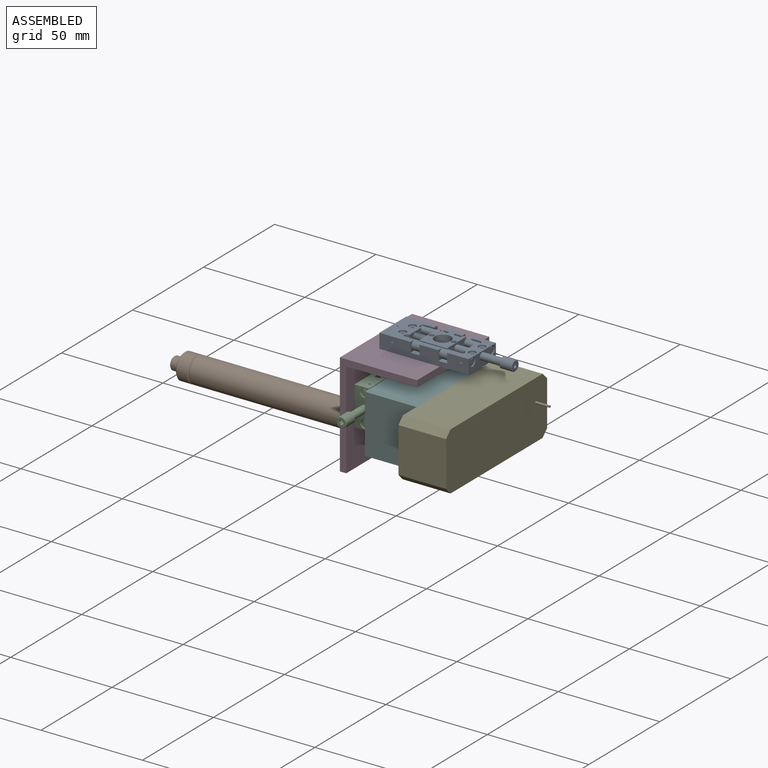
[diagram: assembled view]
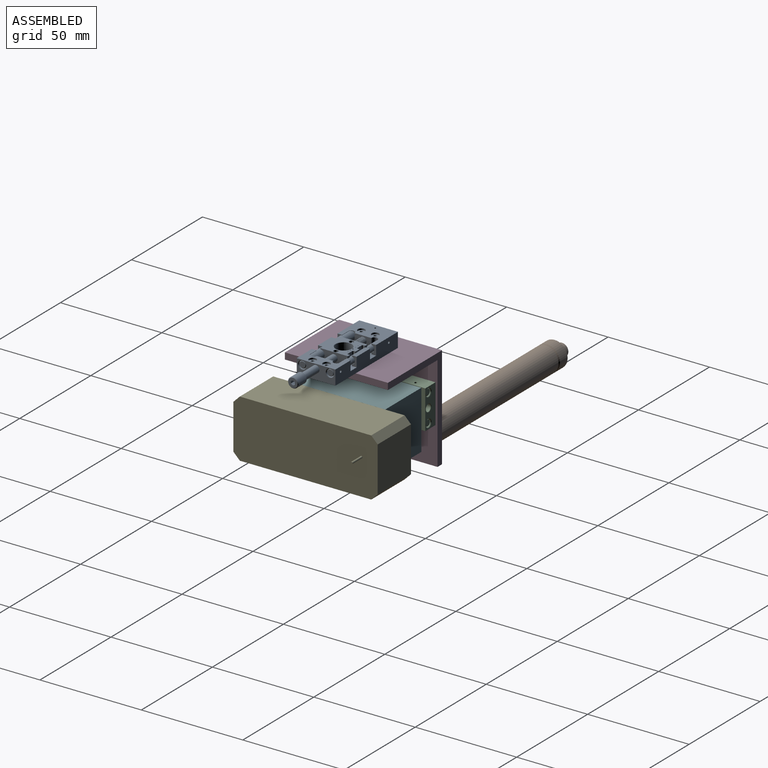
[diagram: assembled view, second angle]
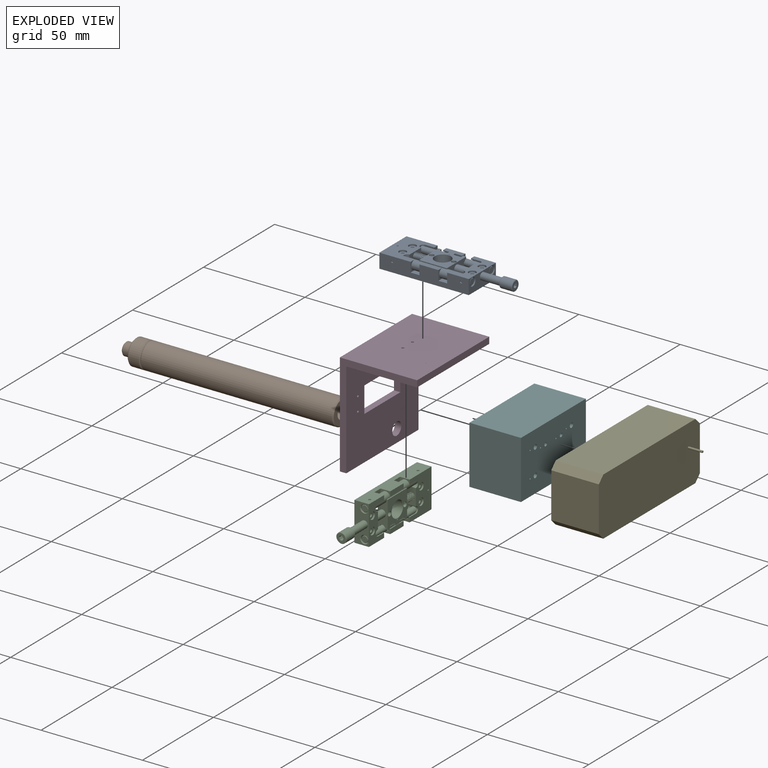
[diagram: exploded view]
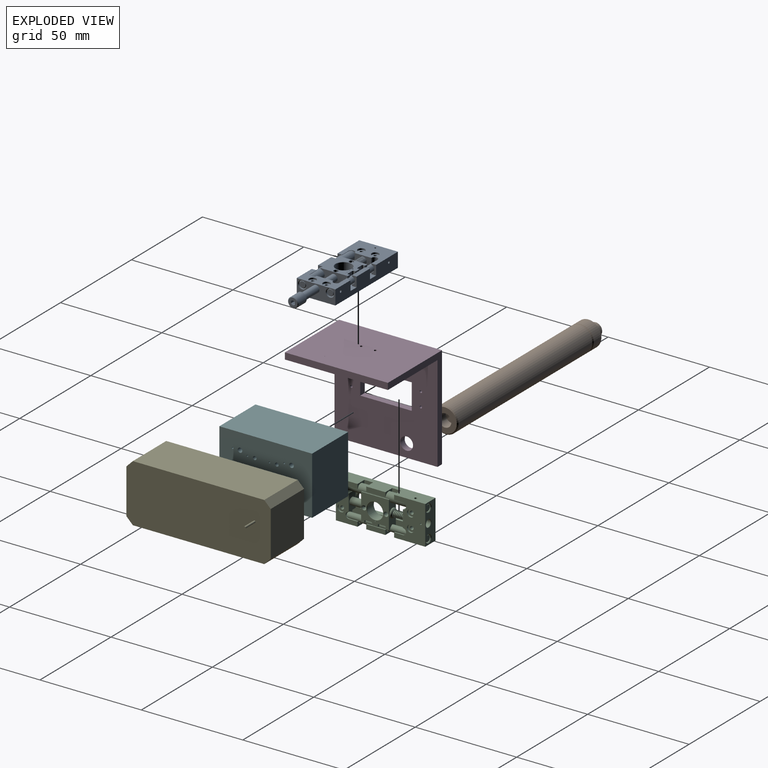
[diagram: exploded view, second angle]
ASSEMBLY  parts=6 mates=5
PART A: 200 faces, bbox 60.4x19.1x7.6 mm
  f0: plane 2.92x2.92mm, normal (1,0,0), area 6.7mm2, adj f1
  f1: cone r=1.59mm half-angle=45deg, axis (-1,0,0), area 4.6mm2, adj f0,f7
  f2: plane 2.92x2.92mm, normal (1,0,0), area 6.7mm2, adj f8
  f3: plane 2.92x2.92mm, normal (-1,0,0), area 6.7mm2, adj f9
  f4: torus R=1.5mm, axis (1,0,0), area 9mm2, adj f17
  f5: plane 2.49x2.49mm, normal (1,0,0), area 4.9mm2, adj f18
  f6: plane 2.92x2.92mm, normal (-1,0,0), area 6.7mm2, adj f22
  f7: cylinder r=1.78mm len=3.56mm, axis (-1,0,0), area 5mm2, adj f1,f26
  f8: cone r=1.59mm half-angle=45deg, axis (-1,0,0), area 1.7mm2, adj f2,f50
  f9: cone r=1.59mm half-angle=45deg, axis (1,0,0), area 1.7mm2, adj f3,f50
  f10: cylinder r=0.48mm len=1.76mm, axis (0,0,1), area 1.1mm2, adj f11,f20,f21,f52
  f11: plane 2.99x1.82mm, normal (0,-1,0), area 5.2mm2, adj f10,f12,f20,f52
  f12: cylinder r=0.48mm len=1.8mm, axis (0,0,1), area 1.2mm2, adj f11,f13,f20,f52
  f13: plane 1.32x0.79mm, normal (1,0,0), area 0.8mm2, adj f12,f14,f20,f44,f52
  f14: cylinder r=0.13mm len=1mm, axis (0,0,-1), area 0.2mm2, adj f13,f15,f44,f52
  f15: plane 2.54x1mm, normal (0,-1,0), area 2.5mm2, adj f14,f16,f44,f52
  f16: cylinder r=0.13mm len=1mm, axis (0,0,-1), area 0.2mm2, adj f15,f43,f44,f52
  f17: bspline ~14.23x3.35mm, area 188.1mm2, adj f4,f59
  f18: cylinder r=1.24mm len=7.47mm, axis (1,0,0), area 58.4mm2, adj f5,f59
  f19: extruded ~5.18x1.17mm, area 6.1mm2, adj f20,f48,f58,f62
  f20: extruded ~5.2x1.14mm, area 3.6mm2, adj f10,f11,f12,f13,f19,f44,f45,f46
  f21: plane 1.27x0.79mm, normal (-1,0,0), area 0.8mm2, adj f10,f40,f52,f63,f64
  f22: cone r=1.59mm half-angle=45deg, axis (1,0,0), area 4.6mm2, adj f6,f65
  f23: plane 3.57x3.57mm, normal (0,0,1), area 7.5mm2, adj f30,f70
  f24: plane 3.57x3.57mm, normal (0,0,1), area 7.5mm2, adj f29,f74
  f25: cone r=2.03mm half-angle=45deg, axis (1,0,0), area 4.3mm2, adj f33,f77
  f26: cone r=2.03mm half-angle=45deg, axis (1,0,0), area 4.3mm2, adj f7,f77
  f27: cone r=1.91mm half-angle=45deg, axis (1,0,0), area 2mm2, adj f37,f77
  f28: cylinder r=0.4mm len=0.8mm, axis (0,0,1), area 1.4mm2, adj f37,f78
  f29: cylinder r=1.79mm len=3.57mm, axis (0,0,1), area 9.1mm2, adj f24,f78
  f30: cylinder r=1.79mm len=3.57mm, axis (0,0,1), area 9.1mm2, adj f23,f78
  f31: cylinder r=2.19mm len=1.18mm, axis (1,0,0), area 1.1mm2, adj f79
  f32: cylinder r=2.19mm len=1.18mm, axis (1,0,0), area 1.1mm2, adj f80
  f33: cylinder r=1.78mm len=15.11mm, axis (-1,0,0), area 131.5mm2, adj f25,f34,f68,f83,f84,f85
  f34: plane 4.32x0.55mm, normal (0,1,0), area 2.4mm2, adj f33,f78,f83,f85
  f35: cylinder r=1.78mm len=9.4mm, axis (-1,0,0), area 45.3mm2, adj f36,f86,f87,f88
  f36: plane 9.4x0.55mm, normal (0,1,0), area 5.2mm2, adj f35,f66,f86,f88
  f37: cylinder r=1.78mm len=10.93mm, axis (1,0,0), area 121.5mm2, adj f27,f28,f72,f92
  f38: plane 3.57x3.57mm, normal (0,0,1), area 7.5mm2, adj f73,f98
  f39: plane 3.57x3.57mm, normal (0,0,1), area 7.5mm2, adj f71,f99
  f40: cylinder r=0.13mm len=1mm, axis (0,0,-1), area 0.2mm2, adj f21,f52,f64,f103
  f41: plane 2.98x1.82mm, normal (0,-1,0), area 5.2mm2, adj f42,f47,f52,f112
  f42: cylinder r=0.48mm len=1.8mm, axis (0,0,1), area 1.2mm2, adj f41,f43,f52,f112
  f43: plane 1.32x0.79mm, normal (-1,0,0), area 0.8mm2, adj f16,f42,f44,f52,f112
  f44: plane 2.8x0.6mm, normal (0,0,-1), area 1.6mm2, adj f13,f14,f15,f16,f20,f43,f45,f112
  f45: plane 0.4x0.4mm, normal (0,-0.71,-0.71), area 0.2mm2, adj f20,f44,f50,f112
  f46: plane 0.41x0.41mm, normal (0,-0.71,-0.71), area 0.2mm2, adj f20,f48,f50,f112
  f47: cylinder r=0.48mm len=1.76mm, axis (0,0,1), area 1.1mm2, adj f41,f52,f112,f113
  f48: plane 1.17x0.28mm, normal (0,-1,0), area 0.3mm2, adj f19,f46,f49,f114
  f49: plane 0.41x0.41mm, normal (0,-0.71,0.71), area 0.2mm2, adj f48,f50,f58,f115
  f50: cylinder r=1.59mm len=43.18mm, axis (1,0,0), area 430.2mm2, adj f8,f9,f20,f45,f46,f49,f51,f58
  f51: plane 0.4x0.4mm, normal (0,-0.71,0.71), area 0.2mm2, adj f50,f57,f58,f115
  f52: plane 11.66x2.41mm, normal (0,0,1), area 16.5mm2, adj f10,f11,f12,f13,f14,f15,f16,f21
  f53: plane 2.38x2.38mm, normal (0,0,-1), area 4.5mm2, adj f117
  f54: torus R=1.5mm, axis (1,0,0), area 1.4mm2, adj f118
  f55: torus R=1.5mm, axis (1,0,0), area 1.6mm2, adj f118
  f56: cylinder r=3.97mm len=7.94mm, axis (0,0,-1), area 116.9mm2, adj f108,f119
  f57: plane 2.8x0.6mm, normal (0,0,1), area 1.6mm2, adj f51,f58,f115,f123,f124,f125,f126,f127
  f58: extruded ~5.2x1.14mm, area 3.6mm2, adj f19,f49,f50,f51,f57,f61,f127,f128
  f59: torus R=1.5mm, axis (1,0,0), area 18.8mm2, adj f17,f18,f165
  f60: plane 1.52x0.65mm, normal (0,0,1), area 1mm2, adj f61,f131,f132,f133,f134,f165
  f61: plane 1.52x1.05mm, normal (0,-0.71,0.71), area 2.3mm2, adj f58,f60,f62,f131,f165
  f62: plane 1.52x1.17mm, normal (0,-1,0), area 1.8mm2, adj f19,f61,f63,f165
  f63: plane 1.52x1.05mm, normal (0,-0.71,-0.71), area 2.3mm2, adj f20,f21,f62,f64,f165
  f64: plane 1.52x0.65mm, normal (0,0,-1), area 1mm2, adj f21,f40,f63,f102,f103,f165
  f65: cylinder r=1.78mm len=3.56mm, axis (-1,0,0), area 3.5mm2, adj f22,f140
  f66: plane 9.4x2.29mm, normal (0,0,1), area 21.5mm2, adj f36,f86,f88,f142
  f67: cylinder r=0.59mm len=1.18mm, axis (0,-1,0), area 3.3mm2, adj f95,f142
  f68: cylinder r=0.59mm len=1.18mm, axis (0,-1,0), area 3.3mm2, adj f33,f142
  f69: cylinder r=0.76mm len=2.3mm, axis (0,0,1), area 11mm2, adj f82,f143
  f70: cylinder r=0.89mm len=6.35mm, axis (0,0,1), area 35.5mm2, adj f23,f143
  f71: cylinder r=0.89mm len=6.35mm, axis (0,0,1), area 35.5mm2, adj f39,f143
  f72: cylinder r=0.4mm len=3.14mm, axis (0,0,1), area 7.8mm2, adj f37,f143
  f73: cylinder r=0.89mm len=6.35mm, axis (0,0,1), area 35.5mm2, adj f38,f143
  f74: cylinder r=0.89mm len=6.35mm, axis (0,0,1), area 35.5mm2, adj f24,f143
  f75: cylinder r=0.76mm len=2.3mm, axis (0,0,1), area 11mm2, adj f93,f143
  f76: plane 9.4x2.29mm, normal (0,0,1), area 21.5mm2, adj f144,f154,f155,f156
  f77: plane 19.05x7.16mm, normal (1,0,0), area 99.1mm2, adj f25,f26,f27,f78,f142,f143,f144
  f78: plane 19.05x15.37mm, normal (0,0,1), area 201.9mm2, adj f28,f29,f30,f34,f77,f83,f85,f92
  f79: cylinder r=0.59mm len=1.18mm, axis (0,1,0), area 1.9mm2, adj f31,f144
  f80: cylinder r=0.59mm len=1.18mm, axis (0,1,0), area 1.9mm2, adj f32,f144
  f81: plane 18.8x2.39mm, normal (0,-1,0), area 44.9mm2, adj f89,f91,f143,f146
  f82: cone r=0.85mm half-angle=45deg, axis (0,0,1), area 0.6mm2, adj f69,f146
  f83: cylinder r=1.57mm len=4.78mm, axis (0,0,1), area 14.1mm2, adj f33,f34,f78,f84,f92,f147
  f84: plane 4.32x0.75mm, normal (0,1,0), area 3.2mm2, adj f33,f83,f85,f147
  f85: plane 4.78x2.29mm, normal (-1,0,0), area 7.3mm2, adj f33,f34,f78,f84,f142,f147
  f86: plane 4.78x2.29mm, normal (1,0,0), area 7.3mm2, adj f35,f36,f66,f87,f142,f147
  f87: plane 9.4x0.75mm, normal (0,1,0), area 7.1mm2, adj f35,f86,f88,f147
  f88: plane 4.78x2.29mm, normal (-1,0,0), area 7.3mm2, adj f35,f36,f66,f87,f142,f147
  f89: cylinder r=3.94mm len=7.87mm, axis (0,0,1), area 29.5mm2, adj f81,f90,f143,f146,f147
  f90: plane 18.8x2.39mm, normal (0,1,0), area 44.9mm2, adj f89,f91,f143,f147
  f91: cylinder r=3.94mm len=7.87mm, axis (0,0,1), area 29.5mm2, adj f81,f90,f143,f146,f147
  f92: plane 8.18x4.78mm, normal (-1,0,0), area 29.1mm2, adj f37,f78,f83,f146,f147,f160
  f93: cone r=0.85mm half-angle=45deg, axis (0,0,1), area 0.6mm2, adj f75,f147
  f94: plane 4.32x0.75mm, normal (0,1,0), area 3.2mm2, adj f95,f97,f147,f148
  f95: cylinder r=1.78mm len=10.41mm, axis (-1,0,0), area 79mm2, adj f67,f94,f96,f97,f141,f148
  f96: plane 4.32x0.55mm, normal (0,1,0), area 2.4mm2, adj f95,f97,f148,f149
  f97: plane 4.78x2.29mm, normal (1,0,0), area 7.3mm2, adj f94,f95,f96,f142,f147,f149
  f98: cylinder r=1.79mm len=3.57mm, axis (0,0,1), area 9.1mm2, adj f38,f149
  f99: cylinder r=1.79mm len=3.57mm, axis (0,0,1), area 9.1mm2, adj f39,f149
  f100: cylinder r=1.27mm len=1.27mm, axis (0,0,1), area 0.1mm2, adj f52,f101,f107,f168
  f101: plane 1.14x0.03mm, normal (1,0,0), area 0mm2, adj f52,f100,f110,f168
  f102: cylinder r=0.13mm len=1.03mm, axis (0,0,1), area 0.2mm2, adj f64,f103,f165,f168
  f103: plane 1.27x1.03mm, normal (0,-1,0), area 1.3mm2, adj f40,f52,f64,f102,f104,f168
  f104: plane 1.14x0.03mm, normal (-1,0,0), area 0mm2, adj f52,f103,f105,f168
  f105: cylinder r=1.27mm len=1.27mm, axis (0,0,1), area 0.1mm2, adj f52,f104,f106,f168
  f106: plane 4.37x0.03mm, normal (0,-1,0), area 0.1mm2, adj f52,f105,f116,f168
  f107: plane 4.37x0.03mm, normal (0,-1,0), area 0.1mm2, adj f52,f100,f116,f168
  f108: cone r=3.97mm half-angle=45deg, axis (0,0,1), area 4.3mm2, adj f56,f168
  f109: cone r=1.09mm half-angle=45deg, axis (0,0,1), area 0.6mm2, adj f118,f168
  f110: plane 1.27x1.03mm, normal (0,-1,0), area 1.3mm2, adj f52,f101,f111,f168,f169,f170
  f111: cylinder r=0.13mm len=1mm, axis (0,0,-1), area 0.2mm2, adj f52,f110,f113,f170
  f112: extruded ~5.2x1.14mm, area 3.6mm2, adj f41,f42,f43,f44,f45,f46,f47,f50
  f113: plane 1.27x0.79mm, normal (1,0,0), area 0.8mm2, adj f47,f52,f111,f170,f171
  f114: extruded ~5.18x1.17mm, area 6.1mm2, adj f48,f112,f115,f172
  f115: extruded ~5.2x1.14mm, area 3.6mm2, adj f49,f50,f51,f57,f114,f120,f121,f122
  f116: cylinder r=0.25mm len=4.93mm, axis (0,0,1), area 7.8mm2, adj f52,f106,f107,f168,f176
  f117: cylinder r=1.19mm len=2.38mm, axis (0,0,-1), area 1mm2, adj f53,f176
  f118: cylinder r=1.09mm len=4.86mm, axis (0,0,-1), area 30.2mm2, adj f54,f55,f109,f176
  f119: cone r=4.09mm half-angle=45deg, axis (0,0,-1), area 4.3mm2, adj f56,f176
  f120: cylinder r=0.48mm len=1.38mm, axis (0,0,1), area 0.9mm2, adj f115,f121,f137,f176
  f121: plane 2.98x1.44mm, normal (0,-1,0), area 4.1mm2, adj f115,f120,f122,f176
  f122: cylinder r=0.48mm len=1.41mm, axis (0,0,1), area 0.9mm2, adj f115,f121,f123,f176
  f123: plane 0.94x0.79mm, normal (-1,0,0), area 0.5mm2, adj f57,f115,f122,f124,f176
  f124: cylinder r=0.13mm len=0.62mm, axis (0,0,-1), area 0.1mm2, adj f57,f123,f125,f176
  f125: plane 2.54x0.62mm, normal (0,-1,0), area 1.6mm2, adj f57,f124,f126,f176
  f126: cylinder r=0.13mm len=0.62mm, axis (0,0,-1), area 0.1mm2, adj f57,f125,f127,f176
  f127: plane 0.94x0.79mm, normal (1,0,0), area 0.5mm2, adj f57,f58,f126,f128,f176
  f128: cylinder r=0.48mm len=1.41mm, axis (0,0,1), area 0.9mm2, adj f58,f127,f129,f176
  f129: plane 2.99x1.44mm, normal (0,-1,0), area 4.1mm2, adj f58,f128,f130,f176
  f130: cylinder r=0.48mm len=1.38mm, axis (0,0,1), area 0.9mm2, adj f58,f129,f131,f176
  f131: plane 0.89x0.79mm, normal (-1,0,0), area 0.5mm2, adj f60,f61,f130,f132,f176
  f132: cylinder r=0.13mm len=0.62mm, axis (0,0,-1), area 0.1mm2, adj f60,f131,f133,f176
  f133: plane 1.27x0.62mm, normal (0,-1,0), area 0.8mm2, adj f60,f132,f134,f176
  f134: cylinder r=0.13mm len=0.62mm, axis (0,0,1), area 0.1mm2, adj f60,f133,f165,f176
  f135: plane 1.27x0.62mm, normal (0,-1,0), area 0.8mm2, adj f136,f174,f175,f176
  f136: cylinder r=0.13mm len=0.62mm, axis (0,0,-1), area 0.1mm2, adj f135,f137,f174,f176
  f137: plane 0.89x0.79mm, normal (1,0,0), area 0.5mm2, adj f120,f136,f173,f174,f176
  f138: plane 4.78x2.29mm, normal (1,0,0), area 5.2mm2, adj f139,f144,f146,f149,f152,f178
  f139: plane 4.32x0.34mm, normal (0,-1,0), area 1.5mm2, adj f138,f145,f146,f178
  f140: cone r=1.78mm half-angle=45deg, axis (-1,0,0), area 4.3mm2, adj f65,f151
  f141: cone r=1.78mm half-angle=45deg, axis (-1,0,0), area 4.3mm2, adj f95,f151
  f142: plane 44.07x7.16mm, normal (0,-1,0), area 272.2mm2, adj f66,f67,f68,f77,f78,f85,f86,f88
  f143: plane 44.07x19.05mm, normal (0,0,-1), area 628.7mm2, adj f69,f70,f71,f72,f73,f74,f75,f77
  f144: plane 44.07x7.16mm, normal (0,1,0), area 272.2mm2, adj f76,f77,f78,f79,f80,f138,f143,f146
  f145: cylinder r=1.57mm len=4.78mm, axis (0,0,1), area 10.3mm2, adj f139,f146,f149,f150,f152,f178
  f146: plane 29.82x9.53mm, normal (0,0,1), area 120mm2, adj f81,f82,f89,f91,f92,f138,f139,f144
  f147: plane 29.82x9.53mm, normal (0,0,1), area 120mm2, adj f83,f84,f85,f86,f87,f88,f89,f90
  f148: cylinder r=1.57mm len=4.78mm, axis (0,0,1), area 14.2mm2, adj f94,f95,f96,f147,f149,f150
  f149: plane 19.05x10.67mm, normal (0,0,1), area 112.9mm2, adj f96,f97,f98,f99,f138,f142,f144,f145
  f150: plane 8.18x4.78mm, normal (1,0,0), area 29.4mm2, adj f145,f146,f147,f148,f149,f181
  f151: plane 19.05x7.16mm, normal (-1,0,0), area 100.9mm2, adj f140,f141,f142,f143,f144,f149,f182
  f152: plane 4.32x0.14mm, normal (0,-1,0), area 0.6mm2, adj f138,f145,f149,f178
  f153: plane 9.4x0.34mm, normal (0,-1,0), area 3.2mm2, adj f146,f154,f156,f178
  f154: plane 4.78x2.29mm, normal (-1,0,0), area 5.2mm2, adj f76,f144,f146,f153,f155,f178
  f155: plane 9.4x0.14mm, normal (0,-1,0), area 1.3mm2, adj f76,f154,f156,f178
  f156: plane 4.78x2.29mm, normal (1,0,0), area 5.2mm2, adj f76,f144,f146,f153,f155,f178
  f157: plane 4.32x0.34mm, normal (0,-1,0), area 1.5mm2, adj f146,f158,f160,f178
  f158: plane 4.78x2.29mm, normal (-1,0,0), area 5.2mm2, adj f78,f144,f146,f157,f159,f178
  f159: plane 4.32x0.14mm, normal (0,-1,0), area 0.6mm2, adj f78,f158,f160,f178
  f160: cylinder r=1.57mm len=4.78mm, axis (0,0,1), area 10.3mm2, adj f78,f92,f146,f157,f159,f178
  f161: cylinder r=0.13mm len=0.49mm, axis (0,0,1), area 0.1mm2, adj f162,f165,f168,f178
  f162: plane 13.44x0.48mm, normal (0,1,0), area 6.4mm2, adj f161,f167,f168,f178
  f163: plane 13.44x0.07mm, normal (0,1,0), area 1mm2, adj f164,f176,f177,f178
  f164: cylinder r=0.13mm len=0.13mm, axis (0,0,1), area 0mm2, adj f163,f165,f176,f178
  f165: plane 13.36x4.93mm, normal (1,0,0), area 39mm2, adj f59,f60,f61,f62,f63,f64,f102,f134
  f166: cone r=1.09mm half-angle=45deg, axis (0,0,1), area 0.6mm2, adj f168,f180
  f167: cylinder r=0.13mm len=0.49mm, axis (0,0,1), area 0.1mm2, adj f162,f168,f178,f179
  f168: plane 13.69x13.61mm, normal (0,0,1), area 98mm2, adj f100,f101,f102,f103,f104,f105,f106,f107
  f169: cylinder r=0.13mm len=1.03mm, axis (0,0,1), area 0.2mm2, adj f110,f168,f170,f179
  f170: plane 1.52x0.65mm, normal (0,0,-1), area 1mm2, adj f110,f111,f113,f169,f171,f179
  f171: plane 1.52x1.05mm, normal (0,-0.71,-0.71), area 2.3mm2, adj f112,f113,f170,f172,f179
  f172: plane 1.52x1.17mm, normal (0,-1,0), area 1.8mm2, adj f114,f171,f173,f179
  f173: plane 1.52x1.05mm, normal (0,-0.71,0.71), area 2.3mm2, adj f115,f137,f172,f174,f179
  f174: plane 1.52x0.65mm, normal (0,0,1), area 1mm2, adj f135,f136,f137,f173,f175,f179
  f175: cylinder r=0.13mm len=0.62mm, axis (0,0,1), area 0.1mm2, adj f135,f174,f176,f179
  f176: plane 13.69x13.61mm, normal (0,0,-1), area 110.9mm2, adj f116,f117,f118,f119,f120,f121,f122,f123
  f177: cylinder r=0.13mm len=0.13mm, axis (0,0,1), area 0mm2, adj f163,f176,f178,f179
  f178: cylinder r=2.19mm len=29.82mm, axis (1,0,0), area 184.8mm2, adj f138,f139,f145,f152,f153,f154,f155,f156
  f179: plane 13.36x4.93mm, normal (-1,0,0), area 45.4mm2, adj f167,f168,f169,f170,f171,f172,f173,f174
  f180: cylinder r=1.09mm len=4.86mm, axis (0,0,-1), area 30mm2, adj f166,f176,f186
  f181: cylinder r=1.75mm len=6.33mm, axis (1,0,0), area 69.7mm2, adj f150,f179
  f182: cylinder r=1.75mm len=9.93mm, axis (1,0,0), area 109.4mm2, adj f151,f199
  f183: plane 3.02x3.02mm, normal (-1,0,0), area 7.2mm2, adj f184
  f184: cylinder r=1.51mm len=3.02mm, axis (1,0,0), area 7.2mm2, adj f183,f185
  f185: plane 3.04x3.04mm, normal (-1,0,0), area 0.1mm2, adj f184,f195
  f186: sphere r=4.11mm, area 3.3mm2, adj f180
  f187: plane 4.57x4.57mm, normal (-1,0,0), area 13mm2, adj f188,f189,f190,f191,f192,f193,f196
  f188: plane 3.05x0.97mm, normal (0,0.53,-0.85), area 3.5mm2, adj f187,f189,f193,f194
  f189: plane 3.05x1.14mm, normal (0,1,0.04), area 3.5mm2, adj f187,f188,f190,f194
  f190: plane 3.05x1.01mm, normal (0,0.47,0.89), area 3.5mm2, adj f187,f189,f191,f194
  f191: plane 3.05x0.97mm, normal (0,-0.53,0.85), area 3.5mm2, adj f187,f190,f192,f194
  f192: plane 3.05x1.14mm, normal (0,-1,-0.04), area 3.5mm2, adj f187,f191,f193,f194
  f193: plane 3.05x1.01mm, normal (0,-0.47,-0.89), area 3.5mm2, adj f187,f188,f192,f194
  f194: plane 3.04x3.04mm, normal (1,0,0), area 3.8mm2, adj f188,f189,f190,f191,f192,f193,f195
  f195: cylinder r=1.52mm len=3.04mm, axis (-1,0,0), area 8.5mm2, adj f185,f194
  f196: cone r=2.54mm half-angle=45deg, axis (1,0,0), area 5.4mm2, adj f187,f197
  f197: cylinder r=2.54mm len=5.84mm, axis (1,0,0), area 93.2mm2, adj f196,f198
  f198: cone r=2.54mm half-angle=45deg, axis (-1,0,0), area 5.4mm2, adj f197,f199
  f199: plane 4.57x4.57mm, normal (1,0,0), area 6.8mm2, adj f182,f198
PART B: 15 faces, bbox 12.7x106.7x12.7 mm
  f0: cylinder r=6.35mm len=94.25mm, axis (0,-1,0), area 3760.4mm2, adj f2,f3
  f1: plane 11.7x11.7mm, normal (0,1,0), area 75.8mm2, adj f2,f4
  f2: cone r=5.85mm half-angle=45deg, axis (0,-1,0), area 27.1mm2, adj f0,f1
  f3: cone r=6.35mm half-angle=45deg, axis (0,1,0), area 27.1mm2, adj f0,f13
  f4: cylinder r=3.17mm len=6.35mm, axis (0,1,0), area 101.3mm2, adj f1,f5
  f5: plane 6.35x6.35mm, normal (0,1,0), area 31.7mm2, adj f4
  f6: cylinder r=3.17mm len=6.35mm, axis (0,-1,0), area 87.4mm2, adj f7,f10
  f7: plane 6.35x6.35mm, normal (0,1,0), area 13.2mm2, adj f6,f9
  f8: plane 5.35x5.35mm, normal (0,-1,0), area 22.5mm2, adj f10
  f9: cylinder r=2.42mm len=4.85mm, axis (0,-1,0), area 3mm2, adj f7,f12
  f10: cone r=2.67mm half-angle=45deg, axis (0,1,0), area 13mm2, adj f6,f8
  f11: cylinder r=6.35mm len=12.7mm, axis (0,-1,0), area 213.5mm2, adj f13,f14
  f12: plane 11.7x11.7mm, normal (0,-1,0), area 89.1mm2, adj f9,f14
  f13: cone r=5.85mm half-angle=45deg, axis (0,-1,0), area 27.1mm2, adj f3,f11
  f14: cone r=6.35mm half-angle=45deg, axis (0,1,0), area 27.1mm2, adj f11,f12
PART C: same geometry as A
PART D: 20 faces, bbox 50.8x50.8x38.1 mm
  f0: plane 50.8x47.63mm, normal (0,0,-1), area 2060.6mm2, adj f4,f5,f6,f7,f10,f11,f12,f13
  f1: plane 50.8x50.8mm, normal (0,0,1), area 2221.9mm2, adj f2,f5,f6,f7,f10,f11,f12,f13
  f2: plane 50.8x38.1mm, normal (-1,0,0), area 1933.2mm2, adj f1,f3,f6,f7,f8,f9,f15
  f3: plane 50.8x3.18mm, normal (0,0,-1), area 161.3mm2, adj f2,f4,f6,f7
  f4: plane 50.8x34.93mm, normal (1,0,0), area 1771.9mm2, adj f0,f3,f6,f7,f8,f9,f15
  f5: plane 50.8x3.18mm, normal (1,0,0), area 161.3mm2, adj f0,f1,f6,f7
  f6: plane 50.8x38.1mm, normal (0,1,0), area 272.2mm2, adj f0,f1,f2,f3,f4,f5
  f7: plane 50.8x38.1mm, normal (0,-1,0), area 272.2mm2, adj f0,f1,f2,f3,f4,f5
  f8: cylinder r=0.6mm len=3.18mm, axis (-1,0,0), area 11.9mm2, adj f2,f4
  f9: cylinder r=0.6mm len=3.18mm, axis (-1,0,0), area 11.9mm2, adj f2,f4
  f10: cylinder r=0.6mm len=3.18mm, axis (0,0,1), area 11.9mm2, adj f0,f1
  f11: cylinder r=3.17mm len=6.35mm, axis (0,0,1), area 63.3mm2, adj f0,f1
  f12: cylinder r=0.6mm len=3.18mm, axis (0,0,1), area 11.9mm2, adj f0,f1
  f13: cylinder r=0.6mm len=3.18mm, axis (0,0,1), area 11.9mm2, adj f0,f1
  f14: cylinder r=0.6mm len=3.18mm, axis (0,0,1), area 11.9mm2, adj f0,f1
  f15: cylinder r=0.13mm len=3.18mm, axis (-1,0,0), area 2.5mm2, adj f2,f4
  f16: plane 12.7x3.18mm, normal (0,-1,0), area 40.3mm2, adj f0,f1,f17,f19
  f17: plane 25.4x3.18mm, normal (1,0,0), area 80.6mm2, adj f0,f1,f16,f18
  f18: plane 12.7x3.18mm, normal (0,1,0), area 40.3mm2, adj f0,f1,f17,f19
  f19: plane 25.4x3.18mm, normal (-1,0,0), area 80.6mm2, adj f0,f1,f16,f18
PART E: 20 faces, bbox 71.1x28.6x30.5 mm
  f0: plane 71.12x28.58mm, normal (0,0,-1), area 1996mm2, adj f1,f2,f3,f4,f5,f6,f7,f8
  f1: plane 23.5x3.18mm, normal (-0.71,-0.71,0), area 105.5mm2, adj f0,f2,f8,f9
  f2: plane 64.77x23.5mm, normal (0,-1,0), area 1521.8mm2, adj f0,f1,f3,f9
  f3: plane 23.5x3.18mm, normal (0.71,-0.71,0), area 105.5mm2, adj f0,f2,f4,f9
  f4: plane 23.5x22.23mm, normal (1,0,0), area 522.2mm2, adj f0,f3,f5,f9
  f5: plane 23.5x3.18mm, normal (0.71,0.71,0), area 105.5mm2, adj f0,f4,f6,f9
  f6: plane 64.77x23.5mm, normal (0,1,0), area 1521.8mm2, adj f0,f5,f7,f9
  f7: plane 23.5x3.18mm, normal (-0.71,0.71,0), area 105.5mm2, adj f0,f6,f8,f9
  f8: plane 23.5x22.23mm, normal (-1,0,0), area 522.2mm2, adj f0,f1,f7,f9
  f9: plane 71.12x28.58mm, normal (0,0,1), area 2011.3mm2, adj f1,f2,f3,f4,f5,f6,f7,f8
  f10: cylinder r=0.5mm len=7mm, axis (0,0,-1), area 22mm2, adj f9,f11
  f11: plane 1x1mm, normal (0,0,1), area 0.8mm2, adj f10
  f12: cylinder r=1.13mm len=6.35mm, axis (0,0,-1), area 45.1mm2, adj f0,f13
  f13: plane 2.26x2.26mm, normal (0,0,-1), area 4mm2, adj f12
  f14: cylinder r=1.13mm len=6.35mm, axis (0,0,-1), area 45.1mm2, adj f0,f15
  f15: plane 2.26x2.26mm, normal (0,0,-1), area 4mm2, adj f14
  f16: cylinder r=1.13mm len=6.35mm, axis (0,0,-1), area 45.1mm2, adj f0,f17
  f17: plane 2.26x2.26mm, normal (0,0,-1), area 4mm2, adj f16
  f18: cylinder r=1.13mm len=6.35mm, axis (0,0,-1), area 45.1mm2, adj f0,f19
  f19: plane 2.26x2.26mm, normal (0,0,-1), area 4mm2, adj f18
PART F: 18 faces, bbox 45.7x25.4x28.6 mm
  f0: plane 45.72x28.58mm, normal (0,-1,0), area 1282.7mm2, adj f2,f3,f4,f5,f6,f7,f8,f9
  f1: plane 45.72x28.58mm, normal (0,1,0), area 1282.7mm2, adj f2,f3,f4,f5,f6,f7,f8,f9
  f2: plane 45.72x25.4mm, normal (0,0,-1), area 1161.3mm2, adj f0,f1,f16,f17
  f3: plane 45.72x25.4mm, normal (0,0,1), area 1161.3mm2, adj f0,f1,f16,f17
  f4: cylinder r=0.38mm len=25.4mm, axis (0,-1,0), area 60.8mm2, adj f0,f1
  f5: cylinder r=1.13mm len=25.4mm, axis (0,-1,0), area 180.4mm2, adj f0,f1
  f6: cylinder r=1.13mm len=25.4mm, axis (0,-1,0), area 180.4mm2, adj f0,f1
  f7: cylinder r=1.13mm len=25.4mm, axis (0,-1,0), area 180.4mm2, adj f0,f1
  f8: cylinder r=1.13mm len=25.4mm, axis (0,-1,0), area 180.4mm2, adj f0,f1
  f9: cylinder r=0.38mm len=25.4mm, axis (0,-1,0), area 60.8mm2, adj f0,f1
  f10: cylinder r=0.38mm len=25.4mm, axis (0,-1,0), area 60.8mm2, adj f0,f1
  f11: cylinder r=0.38mm len=25.4mm, axis (0,-1,0), area 60.8mm2, adj f0,f1
  f12: cylinder r=0.89mm len=25.4mm, axis (0,-1,0), area 141.9mm2, adj f0,f1
  f13: cylinder r=0.89mm len=25.4mm, axis (0,-1,0), area 141.9mm2, adj f0,f1
  f14: cylinder r=0.38mm len=25.4mm, axis (0,-1,0), area 60.8mm2, adj f0,f1
  f15: cylinder r=0.38mm len=25.4mm, axis (0,-1,0), area 60.8mm2, adj f0,f1
  f16: plane 28.58x25.4mm, normal (1,0,0), area 725.8mm2, adj f0,f1,f2,f3
  f17: plane 28.58x25.4mm, normal (-1,0,0), area 725.8mm2, adj f0,f1,f2,f3
PLACE A rot(axis=(0,0,1),180deg) t=(-121.4,80.18,161.8)mm
PLACE B rot(axis=(0.71,0.71,0),180deg) t=(-255.28,93.95,110.19)mm
PLACE C rot(axis=(0.58,0.58,0.58),120deg) t=(-138.26,89.35,135.37)mm
PLACE D rot(axis=(0.71,0,-0.71),180deg) t=(-129.55,109.19,153.05)mm
PLACE E rot(axis=(-0.58,0.58,-0.58),120deg) t=(-88.99,83.62,126.97)mm
PLACE F rot(axis=(0,0,1),90deg) t=(-137.88,77.59,133.32)mm
MATE fastened C.f73 <-> D.f10  axis (-1,0,0) through (-145.43,66.64,135.19)mm
MATE fastened D.f11 <-> B.f4  axis (-1,0,0) through (-148.6,93.95,110.19)mm
MATE fastened E.f12 <-> F.f5  axis (-1,0,0) through (-112.48,96.32,133.34)mm
MATE fastened F.f13 <-> C.f180  axis (-1,0,0) through (-137.88,78.19,131.75)mm
MATE fastened A.f29 <-> D.f8  axis (0,0,-1) through (-132.98,80.36,154.64)mm
